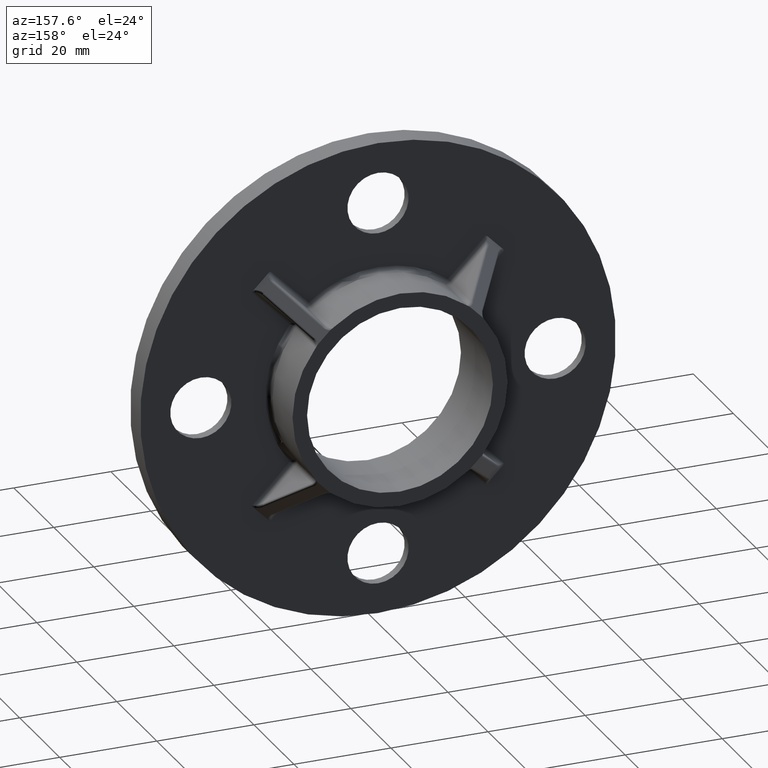
[diagram: clean part render]
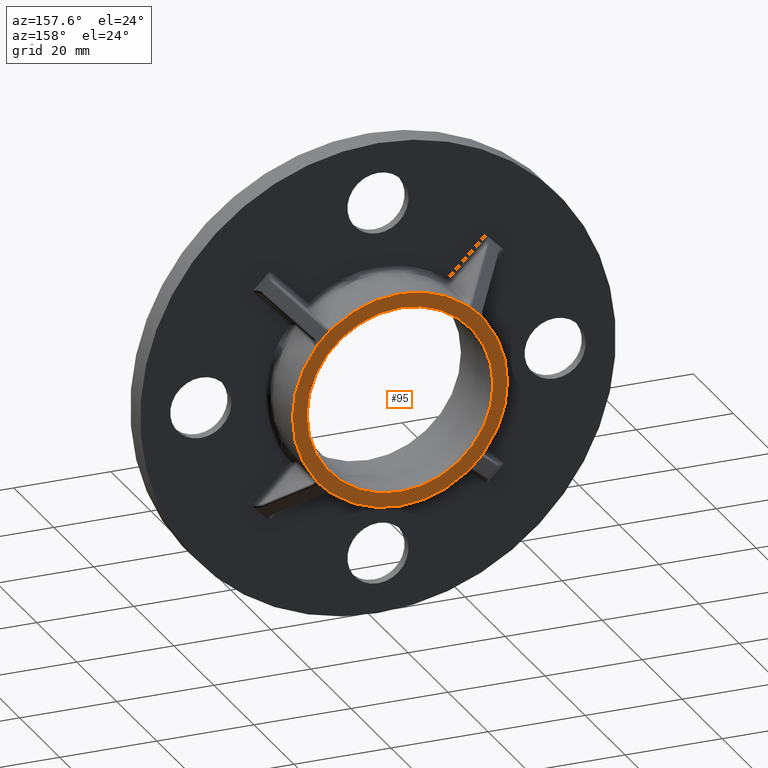
[diagram: same view with one face highlighted and labeled with its STEP entity id]
A machine part, auxiliary view. The second image highlights one B-rep face of the part: STEP entity #95.
In plain terms, the highlighted planar face has unit normal (0, 1, -0).
Its self-contained STEP definition (entity closure, byte-faithful):
#28 = VERTEX_POINT ( 'NONE', #589 ) ;
#68 = CARTESIAN_POINT ( 'NONE',  ( 17.00224626700077100, 16.00000000000000000, 14.32258413956324500 ) ) ;
#95 = ADVANCED_FACE ( 'NONE', ( #1063, #423 ), #801, .T. ) ;
#103 = CARTESIAN_POINT ( 'NONE',  ( 17.12818827565163800, 16.00000000000000000, -14.12870231504148500 ) ) ;
#138 = AXIS2_PLACEMENT_3D ( 'NONE', #3508, #1057, #2986 ) ;
#142 = EDGE_CURVE ( 'NONE', #1711, #523, #2096, .T. ) ;
#168 = CARTESIAN_POINT ( 'NONE',  ( 16.89985207035834600, 16.00000000000000000, 14.42497833620566700 ) ) ;
#173 = CARTESIAN_POINT ( 'NONE',  ( 16.94671155098300400, 16.00000000000000000, 14.37811885558100900 ) ) ;
#197 = VECTOR ( 'NONE', #462, 1000.000000000000000 ) ;
#204 = EDGE_CURVE ( 'NONE', #1244, #2023, #3430, .T. ) ;
#210 = CARTESIAN_POINT ( 'NONE',  ( -17.12848719512042100, 15.99999999999999600, -14.12817958444345300 ) ) ;
#224 = CARTESIAN_POINT ( 'NONE',  ( 14.25917734330977300, 15.99999999999999600, -17.04635156383303100 ) ) ;
#229 = CARTESIAN_POINT ( 'NONE',  ( 0.0000000000000000000, 16.00000000000000000, 0.0000000000000000000 ) ) ;
#242 = CARTESIAN_POINT ( 'NONE',  ( -13.85904960034495300, 15.99999999999999300, -17.28123717630970200 ) ) ;
#246 = ORIENTED_EDGE ( 'NONE', *, *, #2351, .T. ) ;
#259 = CARTESIAN_POINT ( 'NONE',  ( 13.61442219837061200, 16.00000000000000000, 17.47197779887879000 ) ) ;
#268 = CARTESIAN_POINT ( 'NONE',  ( 14.12817958444363600, 16.00000000000000000, -17.12848719512025400 ) ) ;
#279 = CARTESIAN_POINT ( 'NONE',  ( 16.94671155098317400, 16.00000000000000000, -14.37811885558088700 ) ) ;
#294 = VERTEX_POINT ( 'NONE', #2708 ) ;
#299 = CARTESIAN_POINT ( 'NONE',  ( 17.16607212145422400, 16.00000000000000000, 14.06028205279350400 ) ) ;
#358 = CIRCLE ( 'NONE', #2464, 22.14999999999999500 ) ;
#423 = FACE_OUTER_BOUND ( 'NONE', #2631, .T. ) ;
#433 = ORIENTED_EDGE ( 'NONE', *, *, #968, .T. ) ;
#446 = CARTESIAN_POINT ( 'NONE',  ( -16.94671155098324500, 16.00000000000000000, -14.37811885558079300 ) ) ;
#462 = DIRECTION ( 'NONE',  ( 0.7071067811865435800, 0.0000000000000000000, 0.7071067811865514600 ) ) ;
#471 = ORIENTED_EDGE ( 'NONE', *, *, #1752, .T. ) ;
#509 = CARTESIAN_POINT ( 'NONE',  ( -14.06083272898048300, 16.00000000000000400, -17.16576308561772300 ) ) ;
#523 = VERTEX_POINT ( 'NONE', #3398 ) ;
#536 = CARTESIAN_POINT ( 'NONE',  ( -17.00224626700100600, 16.00000000000000400, -14.32258413956303000 ) ) ;
#552 = DIRECTION ( 'NONE',  ( 0.0000000000000000000, 1.000000000000000000, -0.0000000000000000000 ) ) ;
#556 = CARTESIAN_POINT ( 'NONE',  ( 0.0000000000000000000, 16.00000000000000000, 0.0000000000000000000 ) ) ;
#559 = B_SPLINE_CURVE_WITH_KNOTS ( 'NONE', 3,
 ( #2592, #3098, #944, #1456, #3419, #2877, #1173, #1771 ),
 .UNSPECIFIED., .F., .F.,
 ( 4, 2, 2, 4 ),
 ( 0.0000000000000000000, 0.0004639533532869478900, 0.0006959300299304241200, 0.0009279067065739003400 ),
 .UNSPECIFIED. ) ;
#589 = CARTESIAN_POINT ( 'NONE',  ( 16.94671155098317400, 16.00000000000000000, -14.37811885558088700 ) ) ;
#652 = CARTESIAN_POINT ( 'NONE',  ( 17.47197779887865500, 16.00000000000000000, -13.61442219837078600 ) ) ;
#671 = DIRECTION ( 'NONE',  ( 0.0000000000000000000, 1.000000000000000000, -0.0000000000000000000 ) ) ;
#781 = CARTESIAN_POINT ( 'NONE',  ( -17.04635156383320200, 16.00000000000000000, -14.25917734330958500 ) ) ;
#796 = CARTESIAN_POINT ( 'NONE',  ( 14.12870231504132900, 16.00000000000000000, 17.12818827565172300 ) ) ;
#801 = PLANE ( 'NONE',  #3003 ) ;
#806 = CARTESIAN_POINT ( 'NONE',  ( -14.32332928097777400, 16.00000000000000000, -17.00150112558628400 ) ) ;
#809 = DIRECTION ( 'NONE',  ( -0.7071067811865486800, 0.0000000000000000000, -0.7071067811865464600 ) ) ;
#811 = VECTOR ( 'NONE', #809, 999.9999999999998900 ) ;
#822 = EDGE_CURVE ( 'NONE', #1364, #2671, #1941, .T. ) ;
#845 = VECTOR ( 'NONE', #1004, 1000.000000000000100 ) ;
#854 = CARTESIAN_POINT ( 'NONE',  ( -14.12817958444347800, 16.00000000000000000, 17.12848719512037100 ) ) ;
#859 = CARTESIAN_POINT ( 'NONE',  ( 17.16576308561787600, 15.99999999999999600, -14.06083272898033000 ) ) ;
#866 = CARTESIAN_POINT ( 'NONE',  ( 17.28157489832665000, 16.00000000000000400, 13.85848090072591200 ) ) ;
#867 = CARTESIAN_POINT ( 'NONE',  ( -14.06028205279329200, 15.99999999999999600, 17.16607212145439100 ) ) ;
#908 = CARTESIAN_POINT ( 'NONE',  ( 16.94671155098300400, 16.00000000000000000, 14.37811885558100900 ) ) ;
#925 = DIRECTION ( 'NONE',  ( 0.0000000000000000000, 0.0000000000000000000, 1.000000000000000000 ) ) ;
#944 = CARTESIAN_POINT ( 'NONE',  ( -17.28123717630981600, 16.00000000000000000, 13.85904960034477200 ) ) ;
#968 = EDGE_CURVE ( 'NONE', #1573, #1244, #559, .T. ) ;
#993 = AXIS2_PLACEMENT_3D ( 'NONE', #1117, #3323, #925 ) ;
#1002 = CARTESIAN_POINT ( 'NONE',  ( -14.37811885558104100, 16.00000000000000000, -16.94671155098300400 ) ) ;
#1004 = DIRECTION ( 'NONE',  ( 0.7071067811865501300, 0.0000000000000000000, -0.7071067811865450200 ) ) ;
#1057 = DIRECTION ( 'NONE',  ( 0.0000000000000000000, 1.000000000000000000, -0.0000000000000000000 ) ) ;
#1060 = CARTESIAN_POINT ( 'NONE',  ( 14.06028205279345200, 15.99999999999999600, -17.16607212145428500 ) ) ;
#1063 = FACE_BOUND ( 'NONE', #3516, .T. ) ;
#1067 = DIRECTION ( 'NONE',  ( 0.0000000000000000000, 0.0000000000000000000, 1.000000000000000000 ) ) ;
#1073 = ORIENTED_EDGE ( 'NONE', *, *, #2749, .T. ) ;
#1077 = DIRECTION ( 'NONE',  ( 0.0000000000000000000, 1.000000000000000000, -0.0000000000000000000 ) ) ;
#1080 = ORIENTED_EDGE ( 'NONE', *, *, #142, .T. ) ;
#1083 = CARTESIAN_POINT ( 'NONE',  ( 14.37811885558074800, 16.00000000000000000, 16.94671155098324900 ) ) ;
#1093 = CARTESIAN_POINT ( 'NONE',  ( 14.06083272898016600, 16.00000000000000000, 17.16576308561795700 ) ) ;
#1117 = CARTESIAN_POINT ( 'NONE',  ( 0.0000000000000000000, 16.00000000000000000, 0.0000000000000000000 ) ) ;
#1121 = CARTESIAN_POINT ( 'NONE',  ( -13.61442219837068500, 16.00000000000000000, 17.47197779887873300 ) ) ;
#1155 = CARTESIAN_POINT ( 'NONE',  ( -13.85848090072568600, 16.00000000000000400, 17.28157489832683100 ) ) ;
#1159 = ORIENTED_EDGE ( 'NONE', *, *, #2423, .T. ) ;
#1165 = CARTESIAN_POINT ( 'NONE',  ( -14.37811885558081900, 16.00000000000000000, 16.94671155098317400 ) ) ;
#1173 = CARTESIAN_POINT ( 'NONE',  ( -17.00150112558635500, 15.99999999999999600, 14.32332928097760500 ) ) ;
#1196 = EDGE_CURVE ( 'NONE', #523, #1711, #2908, .T. ) ;
#1202 = VERTEX_POINT ( 'NONE', #2541 ) ;
#1235 = DIRECTION ( 'NONE',  ( 0.0000000000000000000, 0.0000000000000000000, 1.000000000000000000 ) ) ;
#1244 = VERTEX_POINT ( 'NONE', #2075 ) ;
#1301 = CARTESIAN_POINT ( 'NONE',  ( 14.37811885558099000, 16.00000000000000000, -16.94671155098306400 ) ) ;
#1307 = CARTESIAN_POINT ( 'NONE',  ( -13.61442219837068500, 16.00000000000000000, 17.47197779887873300 ) ) ;
#1312 = B_SPLINE_CURVE_WITH_KNOTS ( 'NONE', 3,
 ( #2405, #3491, #224, #268, #1060, #2195, #2698, #3244 ),
 .UNSPECIFIED., .F., .F.,
 ( 4, 2, 2, 4 ),
 ( 0.0000000000000000000, 0.0002317113378938614100, 0.0004634226757877228300, 0.0009268453515754507500 ),
 .UNSPECIFIED. ) ;
#1335 = ORIENTED_EDGE ( 'NONE', *, *, #204, .T. ) ;
#1348 = ORIENTED_EDGE ( 'NONE', *, *, #2467, .T. ) ;
#1353 = ORIENTED_EDGE ( 'NONE', *, *, #2709, .T. ) ;
#1364 = VERTEX_POINT ( 'NONE', #173 ) ;
#1366 = CARTESIAN_POINT ( 'NONE',  ( -17.36325782401269200, 16.00000000000000000, -13.72716311562018800 ) ) ;
#1372 = VERTEX_POINT ( 'NONE', #2359 ) ;
#1400 = ORIENTED_EDGE ( 'NONE', *, *, #2444, .T. ) ;
#1419 = CARTESIAN_POINT ( 'NONE',  ( 2.345198620367181000E-015, 16.00000000000000000, 19.14999999999999900 ) ) ;
#1456 = CARTESIAN_POINT ( 'NONE',  ( -17.16576308561780100, 15.99999999999999600, 14.06083272898029800 ) ) ;
#1474 = EDGE_CURVE ( 'NONE', #2752, #2890, #3246, .T. ) ;
#1573 = VERTEX_POINT ( 'NONE', #1963 ) ;
#1580 = CARTESIAN_POINT ( 'NONE',  ( -14.37811885558104100, 16.00000000000000000, -16.94671155098300400 ) ) ;
#1604 = VERTEX_POINT ( 'NONE', #2949 ) ;
#1609 = CARTESIAN_POINT ( 'NONE',  ( 13.72759555255559100, 16.00000000000000000, 17.36284081008481900 ) ) ;
#1620 = DIRECTION ( 'NONE',  ( 0.0000000000000000000, 0.0000000000000000000, 1.000000000000000000 ) ) ;
#1626 = CARTESIAN_POINT ( 'NONE',  ( 0.0000000000000000000, 16.00000000000000000, 0.0000000000000000000 ) ) ;
#1636 = B_SPLINE_CURVE_WITH_KNOTS ( 'NONE', 3,
 ( #3005, #536, #781, #210, #3509, #2159, #1366, #2724 ),
 .UNSPECIFIED., .F., .F.,
 ( 4, 2, 2, 4 ),
 ( 0.0000000000000000000, 0.0002317113378938457200, 0.0004634226757876914400, 0.0009268453515753925300 ),
 .UNSPECIFIED. ) ;
#1640 = AXIS2_PLACEMENT_3D ( 'NONE', #556, #1670, #3299 ) ;
#1657 = CARTESIAN_POINT ( 'NONE',  ( -13.72716311562020400, 15.99999999999999300, 17.36325782401265300 ) ) ;
#1662 = CARTESIAN_POINT ( 'NONE',  ( 17.00150112558644700, 15.99999999999999600, -14.32332928097761700 ) ) ;
#1670 = DIRECTION ( 'NONE',  ( -0.0000000000000000000, -1.000000000000000000, 0.0000000000000000000 ) ) ;
#1679 = CARTESIAN_POINT ( 'NONE',  ( -14.32258413956305900, 16.00000000000000000, 17.00224626700094500 ) ) ;
#1684 = ORIENTED_EDGE ( 'NONE', *, *, #822, .T. ) ;
#1702 = CARTESIAN_POINT ( 'NONE',  ( 17.36325782401248200, 16.00000000000000000, 13.72716311562044400 ) ) ;
#1711 = VERTEX_POINT ( 'NONE', #1419 ) ;
#1752 = EDGE_CURVE ( 'NONE', #2023, #2752, #3495, .T. ) ;
#1754 = CARTESIAN_POINT ( 'NONE',  ( 17.28123717630985800, 16.00000000000000000, -13.85904960034480700 ) ) ;
#1771 = CARTESIAN_POINT ( 'NONE',  ( -16.94671155098308200, 16.00000000000000000, 14.37811885558088500 ) ) ;
#1849 = CARTESIAN_POINT ( 'NONE',  ( -14.42497833620542700, 16.00000000000000000, 16.89985207035856600 ) ) ;
#1892 = CARTESIAN_POINT ( 'NONE',  ( -15.66241520328204300, 16.00000000000000000, -15.66241520328199900 ) ) ;
#1902 = CARTESIAN_POINT ( 'NONE',  ( -14.12870231504163800, 16.00000000000000000, -17.12818827565148200 ) ) ;
#1915 = CARTESIAN_POINT ( 'NONE',  ( 14.25974570272981400, 16.00000000000000400, 17.04596612867458600 ) ) ;
#1932 = CARTESIAN_POINT ( 'NONE',  ( 17.36284081008470900, 15.99999999999999600, -13.72759555255576700 ) ) ;
#1941 = B_SPLINE_CURVE_WITH_KNOTS ( 'NONE', 3,
 ( #908, #68, #2548, #1947, #299, #866, #1702, #3344 ),
 .UNSPECIFIED., .F., .F.,
 ( 4, 2, 2, 4 ),
 ( 0.0000000000000000000, 0.0002317113378938444200, 0.0004634226757876888400, 0.0009268453515753783300 ),
 .UNSPECIFIED. ) ;
#1946 = CARTESIAN_POINT ( 'NONE',  ( 0.0000000000000000000, 16.00000000000000000, 0.0000000000000000000 ) ) ;
#1947 = CARTESIAN_POINT ( 'NONE',  ( 17.12848719512019400, 16.00000000000000400, 14.12817958444367900 ) ) ;
#1949 = CARTESIAN_POINT ( 'NONE',  ( -14.25917734330960800, 15.99999999999999600, 17.04635156383313800 ) ) ;
#1963 = CARTESIAN_POINT ( 'NONE',  ( -17.47197779887868300, 16.00000000000000000, 13.61442219837075400 ) ) ;
#1992 = VERTEX_POINT ( 'NONE', #446 ) ;
#1995 = AXIS2_PLACEMENT_3D ( 'NONE', #2309, #671, #1235 ) ;
#1996 = CIRCLE ( 'NONE', #138, 22.14999999999999500 ) ;
#2023 = VERTEX_POINT ( 'NONE', #2647 ) ;
#2060 = ORIENTED_EDGE ( 'NONE', *, *, #2401, .T. ) ;
#2063 = B_SPLINE_CURVE_WITH_KNOTS ( 'NONE', 3,
 ( #652, #1932, #1754, #859, #103, #2774, #1662, #279 ),
 .UNSPECIFIED., .F., .F.,
 ( 4, 2, 2, 4 ),
 ( 0.0000000000000000000, 0.0004639533532868985600, 0.0006959300299303501800, 0.0009279067065738016800 ),
 .UNSPECIFIED. ) ;
#2075 = CARTESIAN_POINT ( 'NONE',  ( -16.94671155098308200, 16.00000000000000000, 14.37811885558088500 ) ) ;
#2096 = CIRCLE ( 'NONE', #3537, 19.14999999999999900 ) ;
#2103 = VERTEX_POINT ( 'NONE', #1002 ) ;
#2119 = CIRCLE ( 'NONE', #1995, 22.14999999999999500 ) ;
#2124 = LINE ( 'NONE', #168, #845 ) ;
#2132 = CARTESIAN_POINT ( 'NONE',  ( -13.61442219837093900, 16.00000000000000000, -17.47197779887853700 ) ) ;
#2149 = DIRECTION ( 'NONE',  ( -0.7071067811865464600, 0.0000000000000000000, 0.7071067811865486800 ) ) ;
#2159 = CARTESIAN_POINT ( 'NONE',  ( -17.28157489832687000, 16.00000000000000000, -13.85848090072566500 ) ) ;
#2195 = CARTESIAN_POINT ( 'NONE',  ( 13.85848090072583500, 16.00000000000000400, -17.28157489832672800 ) ) ;
#2202 = CIRCLE ( 'NONE', #993, 22.14999999999999500 ) ;
#2206 = B_SPLINE_CURVE_WITH_KNOTS ( 'NONE', 3,
 ( #2132, #2438, #242, #509, #1902, #3535, #806, #1580 ),
 .UNSPECIFIED., .F., .F.,
 ( 4, 2, 2, 4 ),
 ( 0.0000000000000000000, 0.0004639533532869172700, 0.0006959300299303758700, 0.0009279067065738345300 ),
 .UNSPECIFIED. ) ;
#2309 = CARTESIAN_POINT ( 'NONE',  ( 0.0000000000000000000, 16.00000000000000000, 0.0000000000000000000 ) ) ;
#2351 = EDGE_CURVE ( 'NONE', #1202, #1364, #2124, .T. ) ;
#2359 = CARTESIAN_POINT ( 'NONE',  ( 17.47197779887865500, 16.00000000000000000, -13.61442219837078600 ) ) ;
#2383 = VECTOR ( 'NONE', #2149, 999.9999999999998900 ) ;
#2388 = DIRECTION ( 'NONE',  ( 0.0000000000000000000, 0.0000000000000000000, 1.000000000000000000 ) ) ;
#2401 = EDGE_CURVE ( 'NONE', #3035, #2712, #1312, .T. ) ;
#2405 = CARTESIAN_POINT ( 'NONE',  ( 14.37811885558099000, 16.00000000000000000, -16.94671155098306400 ) ) ;
#2412 = ORIENTED_EDGE ( 'NONE', *, *, #2590, .T. ) ;
#2415 = CARTESIAN_POINT ( 'NONE',  ( 17.47197779887854800, 16.00000000000000000, 13.61442219837092100 ) ) ;
#2423 = EDGE_CURVE ( 'NONE', #2890, #1202, #2764, .T. ) ;
#2438 = CARTESIAN_POINT ( 'NONE',  ( -13.72759555255591300, 16.00000000000000000, -17.36284081008456700 ) ) ;
#2444 = EDGE_CURVE ( 'NONE', #2103, #1992, #2807, .T. ) ;
#2455 = ORIENTED_EDGE ( 'NONE', *, *, #2558, .T. ) ;
#2464 = AXIS2_PLACEMENT_3D ( 'NONE', #3520, #2694, #1620 ) ;
#2467 = EDGE_CURVE ( 'NONE', #28, #3035, #2649, .T. ) ;
#2541 = CARTESIAN_POINT ( 'NONE',  ( 14.37811885558074800, 16.00000000000000000, 16.94671155098324900 ) ) ;
#2548 = CARTESIAN_POINT ( 'NONE',  ( 17.04635156383296000, 16.00000000000000000, 14.25917734330980100 ) ) ;
#2558 = EDGE_CURVE ( 'NONE', #2712, #1604, #2202, .T. ) ;
#2590 = EDGE_CURVE ( 'NONE', #1372, #28, #2063, .T. ) ;
#2592 = CARTESIAN_POINT ( 'NONE',  ( -17.47197779887868300, 16.00000000000000000, 13.61442219837075400 ) ) ;
#2631 = EDGE_LOOP ( 'NONE', ( #3448, #1159, #246, #1684, #3475, #2412, #1348, #2060, #2455, #1073, #1353, #1400, #3436, #3353, #433, #1335, #471 ) ) ;
#2647 = CARTESIAN_POINT ( 'NONE',  ( -14.37811885558081900, 16.00000000000000000, 16.94671155098317400 ) ) ;
#2649 = LINE ( 'NONE', #3559, #811 ) ;
#2671 = VERTEX_POINT ( 'NONE', #2415 ) ;
#2680 = EDGE_CURVE ( 'NONE', #2671, #1372, #1996, .T. ) ;
#2694 = DIRECTION ( 'NONE',  ( 0.0000000000000000000, 1.000000000000000000, -0.0000000000000000000 ) ) ;
#2698 = CARTESIAN_POINT ( 'NONE',  ( 13.72716311562035200, 15.99999999999999300, -17.36325782401255000 ) ) ;
#2708 = CARTESIAN_POINT ( 'NONE',  ( -13.61442219837093900, 16.00000000000000000, -17.47197779887853700 ) ) ;
#2709 = EDGE_CURVE ( 'NONE', #294, #2103, #2206, .T. ) ;
#2712 = VERTEX_POINT ( 'NONE', #3264 ) ;
#2724 = CARTESIAN_POINT ( 'NONE',  ( -17.47197779887875800, 16.00000000000000000, -13.61442219837065300 ) ) ;
#2749 = EDGE_CURVE ( 'NONE', #1604, #294, #358, .T. ) ;
#2752 = VERTEX_POINT ( 'NONE', #1307 ) ;
#2764 = B_SPLINE_CURVE_WITH_KNOTS ( 'NONE', 3,
 ( #259, #1609, #3547, #1093, #796, #1915, #3523, #1083 ),
 .UNSPECIFIED., .F., .F.,
 ( 4, 2, 2, 4 ),
 ( 0.0000000000000000000, 0.0004639533532869328800, 0.0006959300299303996200, 0.0009279067065738664100 ),
 .UNSPECIFIED. ) ;
#2774 = CARTESIAN_POINT ( 'NONE',  ( 17.04596612867450000, 16.00000000000000000, -14.25974570272996500 ) ) ;
#2807 = LINE ( 'NONE', #1892, #2383 ) ;
#2877 = CARTESIAN_POINT ( 'NONE',  ( -17.04596612867441500, 16.00000000000000000, 14.25974570272995100 ) ) ;
#2890 = VERTEX_POINT ( 'NONE', #3174 ) ;
#2908 = CIRCLE ( 'NONE', #1640, 19.14999999999999900 ) ;
#2949 = CARTESIAN_POINT ( 'NONE',  ( 0.0000000000000000000, 16.00000000000000000, -22.14999999999999500 ) ) ;
#2986 = DIRECTION ( 'NONE',  ( 0.0000000000000000000, 0.0000000000000000000, 1.000000000000000000 ) ) ;
#3003 = AXIS2_PLACEMENT_3D ( 'NONE', #229, #552, #1067 ) ;
#3005 = CARTESIAN_POINT ( 'NONE',  ( -16.94671155098324500, 16.00000000000000000, -14.37811885558079300 ) ) ;
#3035 = VERTEX_POINT ( 'NONE', #1301 ) ;
#3098 = CARTESIAN_POINT ( 'NONE',  ( -17.36284081008469500, 15.99999999999999600, 13.72759555255572500 ) ) ;
#3155 = EDGE_CURVE ( 'NONE', #3525, #1573, #2119, .T. ) ;
#3174 = CARTESIAN_POINT ( 'NONE',  ( 13.61442219837061200, 16.00000000000000000, 17.47197779887879000 ) ) ;
#3211 = DIRECTION ( 'NONE',  ( -0.0000000000000000000, -1.000000000000000000, 0.0000000000000000000 ) ) ;
#3244 = CARTESIAN_POINT ( 'NONE',  ( 13.61442219837082100, 16.00000000000000000, -17.47197779887863000 ) ) ;
#3246 = CIRCLE ( 'NONE', #3429, 22.14999999999999500 ) ;
#3264 = CARTESIAN_POINT ( 'NONE',  ( 13.61442219837082100, 16.00000000000000000, -17.47197779887863000 ) ) ;
#3299 = DIRECTION ( 'NONE',  ( 0.0000000000000000000, 0.0000000000000000000, 1.000000000000000000 ) ) ;
#3323 = DIRECTION ( 'NONE',  ( 0.0000000000000000000, 1.000000000000000000, -0.0000000000000000000 ) ) ;
#3344 = CARTESIAN_POINT ( 'NONE',  ( 17.47197779887854800, 16.00000000000000000, 13.61442219837092100 ) ) ;
#3353 = ORIENTED_EDGE ( 'NONE', *, *, #3155, .T. ) ;
#3398 = CARTESIAN_POINT ( 'NONE',  ( 0.0000000000000000000, 16.00000000000000000, -19.14999999999999900 ) ) ;
#3419 = CARTESIAN_POINT ( 'NONE',  ( -17.12818827565156700, 16.00000000000000000, 14.12870231504146500 ) ) ;
#3429 = AXIS2_PLACEMENT_3D ( 'NONE', #1626, #1077, #3566 ) ;
#3430 = LINE ( 'NONE', #1849, #197 ) ;
#3436 = ORIENTED_EDGE ( 'NONE', *, *, #3482, .T. ) ;
#3448 = ORIENTED_EDGE ( 'NONE', *, *, #1474, .T. ) ;
#3475 = ORIENTED_EDGE ( 'NONE', *, *, #2680, .T. ) ;
#3482 = EDGE_CURVE ( 'NONE', #1992, #3525, #1636, .T. ) ;
#3491 = CARTESIAN_POINT ( 'NONE',  ( 14.32258413956322600, 16.00000000000000000, -17.00224626700082800 ) ) ;
#3495 = B_SPLINE_CURVE_WITH_KNOTS ( 'NONE', 3,
 ( #1165, #1679, #1949, #854, #867, #1155, #1657, #1121 ),
 .UNSPECIFIED., .F., .F.,
 ( 4, 2, 2, 4 ),
 ( 0.0000000000000000000, 0.0002317113378938542600, 0.0004634226757877085200, 0.0009268453515754221300 ),
 .UNSPECIFIED. ) ;
#3508 = CARTESIAN_POINT ( 'NONE',  ( 0.0000000000000000000, 16.00000000000000000, 0.0000000000000000000 ) ) ;
#3509 = CARTESIAN_POINT ( 'NONE',  ( -17.16607212145445200, 16.00000000000000000, -14.06028205279327500 ) ) ;
#3516 = EDGE_LOOP ( 'NONE', ( #3565, #1080 ) ) ;
#3520 = CARTESIAN_POINT ( 'NONE',  ( 0.0000000000000000000, 16.00000000000000000, 0.0000000000000000000 ) ) ;
#3523 = CARTESIAN_POINT ( 'NONE',  ( 14.32332928097747000, 15.99999999999999600, 17.00150112558652200 ) ) ;
#3525 = VERTEX_POINT ( 'NONE', #3546 ) ;
#3535 = CARTESIAN_POINT ( 'NONE',  ( -14.25974570273012200, 16.00000000000000400, -17.04596612867434800 ) ) ;
#3537 = AXIS2_PLACEMENT_3D ( 'NONE', #1946, #3211, #2388 ) ;
#3546 = CARTESIAN_POINT ( 'NONE',  ( -17.47197779887875800, 16.00000000000000000, -13.61442219837065300 ) ) ;
#3547 = CARTESIAN_POINT ( 'NONE',  ( 13.85904960034463300, 15.99999999999999300, 17.28123717630995100 ) ) ;
#3559 = CARTESIAN_POINT ( 'NONE',  ( 15.66241520328200600, 16.00000000000000000, -15.66241520328205400 ) ) ;
#3565 = ORIENTED_EDGE ( 'NONE', *, *, #1196, .T. ) ;
#3566 = DIRECTION ( 'NONE',  ( 0.0000000000000000000, 0.0000000000000000000, 1.000000000000000000 ) ) ;